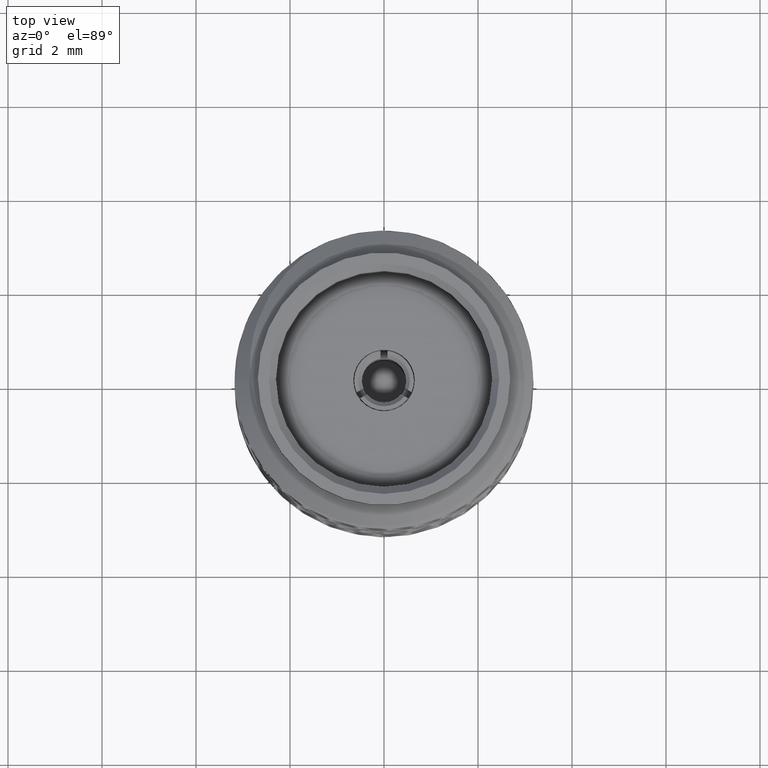
[diagram: clean part render]
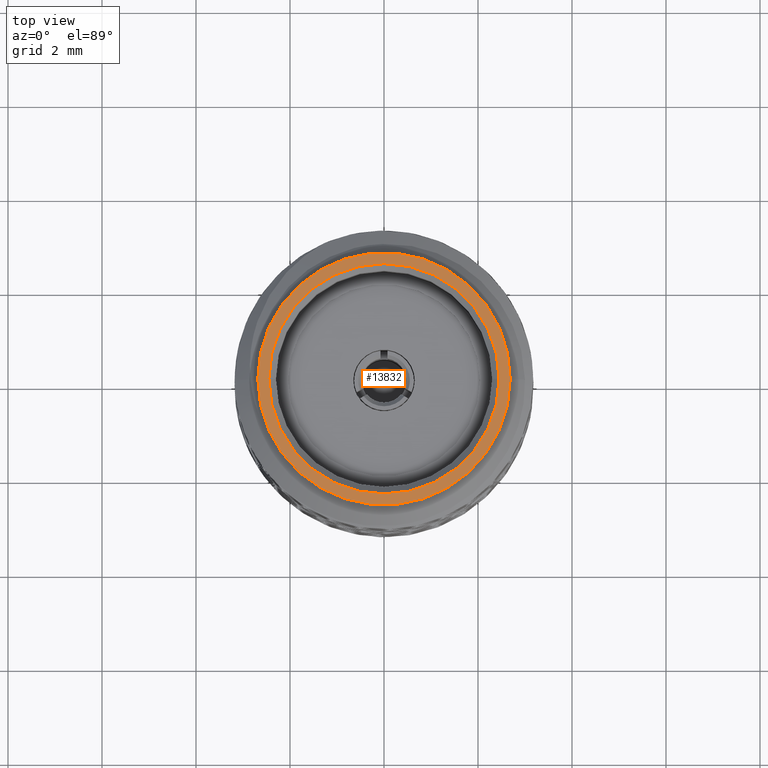
[diagram: same view with one face highlighted and labeled with its STEP entity id]
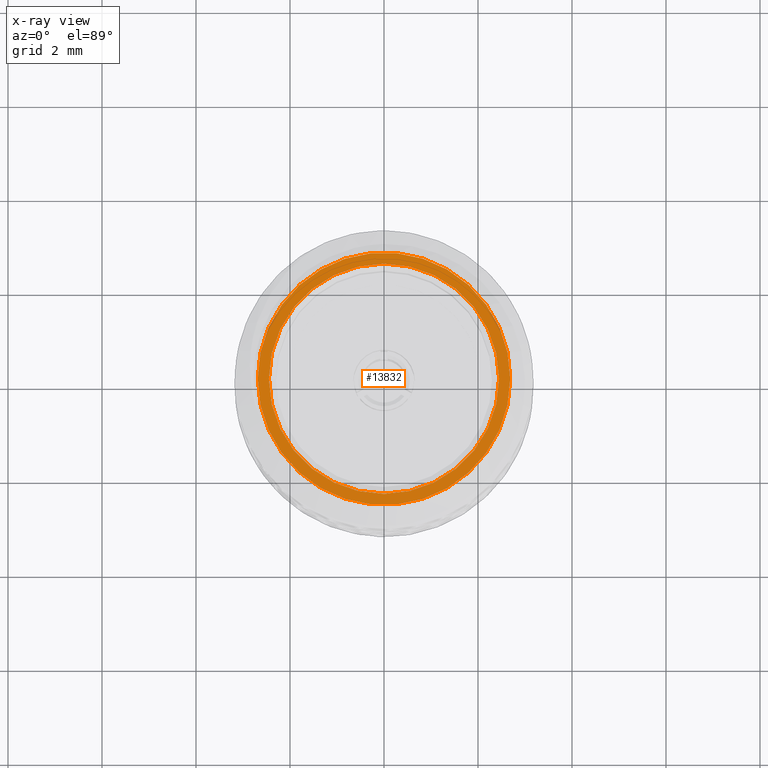
[diagram: x-ray of the same camera — body ghosted, the highlighted face saturated]
A machine part, top view. The second image highlights one B-rep face of the part: STEP entity #13832.
The next image is the same camera in x-ray: the body ghosted, the highlighted face saturated — about 0% of this face is hidden behind the body in this view.
In plain terms, the highlighted planar face has unit normal (0, 0, 1).
Its self-contained STEP definition (entity closure, byte-faithful):
#201 = FACE_OUTER_BOUND ( 'NONE', #5832, .T. ) ;
#518 = VERTEX_POINT ( 'NONE', #6679 ) ;
#839 = VERTEX_POINT ( 'NONE', #7594 ) ;
#1540 = EDGE_LOOP ( 'NONE', ( #1740, #13312 ) ) ;
#1740 = ORIENTED_EDGE ( 'NONE', *, *, #10964, .T. ) ;
#1743 = DIRECTION ( 'NONE',  ( 1.000000000000000000, 0.0000000000000000000, -0.0000000000000000000 ) ) ;
#2210 = DIRECTION ( 'NONE',  ( 0.0000000000000000000, 0.0000000000000000000, 1.000000000000000000 ) ) ;
#2322 = EDGE_CURVE ( 'NONE', #11951, #518, #6488, .T. ) ;
#2487 = EDGE_CURVE ( 'NONE', #839, #6380, #5966, .T. ) ;
#2836 = CARTESIAN_POINT ( 'NONE',  ( 0.0000000000000000000, 0.0000000000000000000, 6.349999999999999600 ) ) ;
#2895 = CARTESIAN_POINT ( 'NONE',  ( 0.0000000000000000000, 0.0000000000000000000, 6.349999999999999600 ) ) ;
#2944 = DIRECTION ( 'NONE',  ( 1.000000000000000000, 0.0000000000000000000, 0.0000000000000000000 ) ) ;
#4166 = DIRECTION ( 'NONE',  ( 1.000000000000000000, 0.0000000000000000000, 0.0000000000000000000 ) ) ;
#4286 = DIRECTION ( 'NONE',  ( 1.000000000000000000, 0.0000000000000000000, 0.0000000000000000000 ) ) ;
#4313 = CARTESIAN_POINT ( 'NONE',  ( 0.0000000000000000000, 0.0000000000000000000, 6.349999999999999600 ) ) ;
#4443 = ORIENTED_EDGE ( 'NONE', *, *, #2487, .T. ) ;
#4989 = CARTESIAN_POINT ( 'NONE',  ( -2.449999999999998800, 3.000384657911014400E-016, 6.349999999999999600 ) ) ;
#5040 = DIRECTION ( 'NONE',  ( -0.0000000000000000000, -0.0000000000000000000, -1.000000000000000000 ) ) ;
#5183 = DIRECTION ( 'NONE',  ( 0.0000000000000000000, 0.0000000000000000000, 1.000000000000000000 ) ) ;
#5392 = AXIS2_PLACEMENT_3D ( 'NONE', #7136, #6095, #4286 ) ;
#5832 = EDGE_LOOP ( 'NONE', ( #4443, #10019 ) ) ;
#5966 = CIRCLE ( 'NONE', #8156, 2.685000000000000100 ) ;
#6001 = CIRCLE ( 'NONE', #5392, 2.449999999999998800 ) ;
#6095 = DIRECTION ( 'NONE',  ( -0.0000000000000000000, -0.0000000000000000000, -1.000000000000000000 ) ) ;
#6380 = VERTEX_POINT ( 'NONE', #10660 ) ;
#6488 = CIRCLE ( 'NONE', #7437, 2.449999999999998800 ) ;
#6679 = CARTESIAN_POINT ( 'NONE',  ( 2.449999999999998800, 0.0000000000000000000, 6.349999999999999600 ) ) ;
#7117 = PLANE ( 'NONE',  #11249 ) ;
#7136 = CARTESIAN_POINT ( 'NONE',  ( 0.0000000000000000000, 0.0000000000000000000, 6.349999999999999600 ) ) ;
#7437 = AXIS2_PLACEMENT_3D ( 'NONE', #2895, #5040, #8215 ) ;
#7594 = CARTESIAN_POINT ( 'NONE',  ( 2.685000000000000100, 0.0000000000000000000, 6.349999999999999600 ) ) ;
#8156 = AXIS2_PLACEMENT_3D ( 'NONE', #12718, #5183, #2944 ) ;
#8215 = DIRECTION ( 'NONE',  ( 1.000000000000000000, 0.0000000000000000000, 0.0000000000000000000 ) ) ;
#8562 = AXIS2_PLACEMENT_3D ( 'NONE', #4313, #2210, #4166 ) ;
#8786 = EDGE_CURVE ( 'NONE', #6380, #839, #11568, .T. ) ;
#9374 = FACE_BOUND ( 'NONE', #1540, .T. ) ;
#10019 = ORIENTED_EDGE ( 'NONE', *, *, #8786, .T. ) ;
#10660 = CARTESIAN_POINT ( 'NONE',  ( -2.685000000000000100, 3.288176655710643100E-016, 6.349999999999999600 ) ) ;
#10964 = EDGE_CURVE ( 'NONE', #518, #11951, #6001, .T. ) ;
#11249 = AXIS2_PLACEMENT_3D ( 'NONE', #2836, #13615, #1743 ) ;
#11568 = CIRCLE ( 'NONE', #8562, 2.685000000000000100 ) ;
#11951 = VERTEX_POINT ( 'NONE', #4989 ) ;
#12718 = CARTESIAN_POINT ( 'NONE',  ( 0.0000000000000000000, 0.0000000000000000000, 6.349999999999999600 ) ) ;
#13312 = ORIENTED_EDGE ( 'NONE', *, *, #2322, .T. ) ;
#13615 = DIRECTION ( 'NONE',  ( 0.0000000000000000000, 0.0000000000000000000, 1.000000000000000000 ) ) ;
#13832 = ADVANCED_FACE ( 'NONE', ( #9374, #201 ), #7117, .T. ) ;